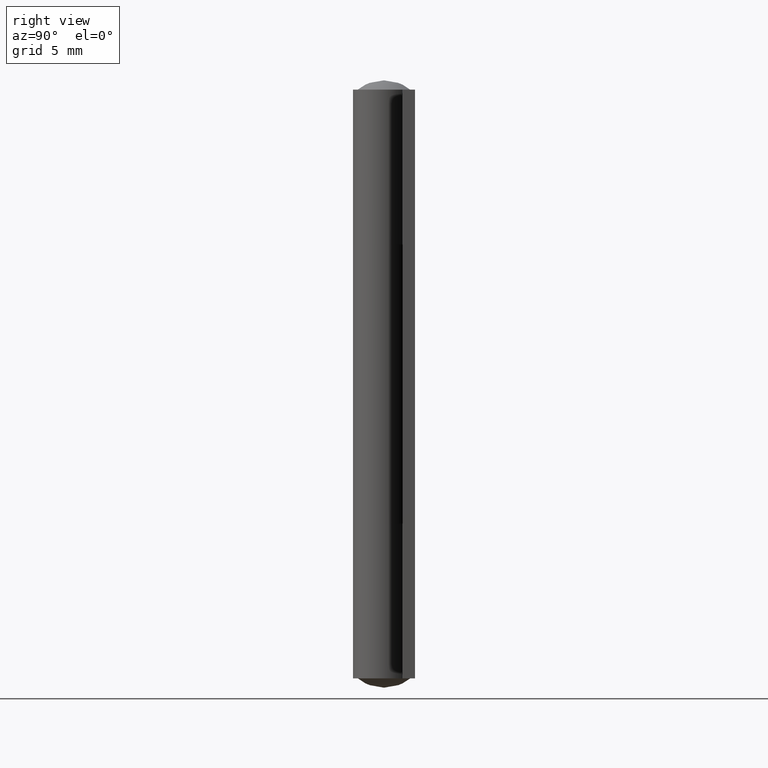
[diagram: clean part render]
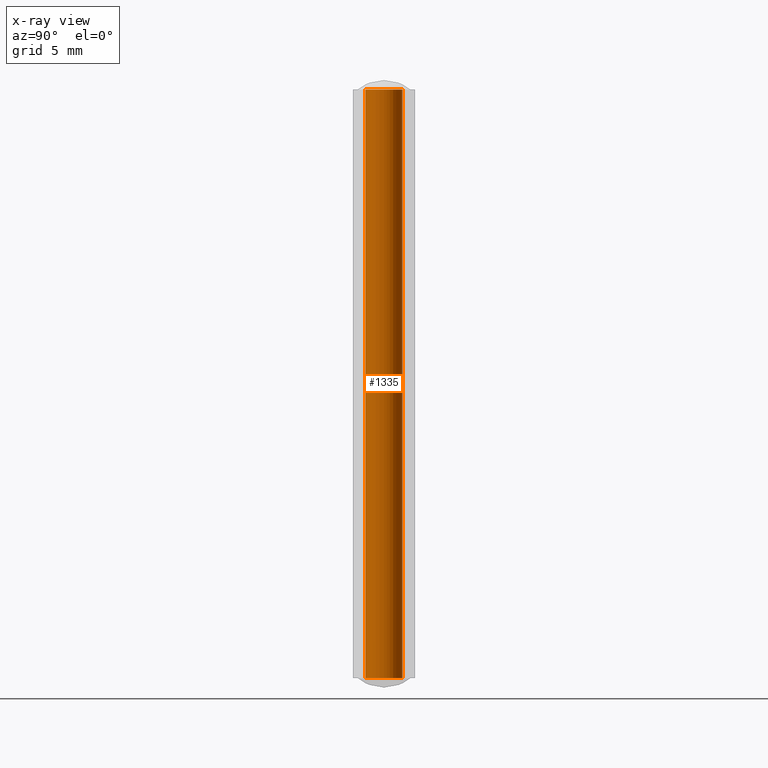
[diagram: x-ray — body ghosted, one internal face saturated and labeled with its STEP entity id]
A machine part, right view, then the same camera in x-ray: the body is ghosted and one INTERNAL B-rep face — a face not visible from any outside direction — is saturated and labeled: STEP entity #1335.
In plain terms, the highlighted face is a freeform B-spline surface patch.
Its self-contained STEP definition (entity closure, byte-faithful):
#1202=CARTESIAN_POINT('',(1.200000000000000,0.0,0.0));
#1203=VERTEX_POINT('',#1202);
#1204=CARTESIAN_POINT('',(0.073258247494476,-1.197761758103020,5.551115E-016));
#1205=VERTEX_POINT('',#1204);
#1206=CARTESIAN_POINT('',(1.200000000000000,0.0,0.0));
#1207=CARTESIAN_POINT('',(1.200000000000000,-1.128847280237123,0.0));
#1208=CARTESIAN_POINT('',(0.073258247494476,-1.197761758103021,0.0));
#1216=(BOUNDED_CURVE()B_SPLINE_CURVE(2,(#1206,#1207,#1208),.UNSPECIFIED.,.F.,.U.)B_SPLINE_CURVE_WITH_KNOTS((3,3),(0.500000000000000,0.739332962234384),.UNSPECIFIED.)CURVE()GEOMETRIC_REPRESENTATION_ITEM()RATIONAL_B_SPLINE_CURVE((1.0,0.719603993292051,0.976072041656947))REPRESENTATION_ITEM(''));
#1217=EDGE_CURVE('',#1203,#1205,#1216,.T.);
#1236=CARTESIAN_POINT('',(-0.073258247494475,1.197761758103020,5.551115E-016));
#1237=VERTEX_POINT('',#1236);
#1251=CARTESIAN_POINT('',(-0.073258247494475,1.197761758103021,0.0));
#1252=CARTESIAN_POINT('',(-0.036663315984704,1.200000000000000,0.0));
#1253=CARTESIAN_POINT('',(0.0,1.200000000000000,0.0));
#1254=CARTESIAN_POINT('',(1.200000000000000,1.200000000000000,0.0));
#1255=CARTESIAN_POINT('',(1.200000000000000,0.0,0.0));
#1263=(BOUNDED_CURVE()B_SPLINE_CURVE(2,(#1251,#1252,#1253,#1254,#1255),.UNSPECIFIED.,.F.,.U.)B_SPLINE_CURVE_WITH_KNOTS((3,2,3),(0.239332962234384,0.250000000000000,0.500000000000000),.UNSPECIFIED.)CURVE()GEOMETRIC_REPRESENTATION_ITEM()RATIONAL_B_SPLINE_CURVE((0.976072041656947,0.987502787894496,1.0,0.707106781186547,1.0))REPRESENTATION_ITEM(''));
#1264=EDGE_CURVE('',#1237,#1203,#1263,.T.);
#1269=CARTESIAN_POINT('',(-0.073258247441828,1.197761758106240,38.950000000000010));
#1270=CARTESIAN_POINT('',(1.124503510664412,1.271020005548068,38.950000000000003));
#1271=CARTESIAN_POINT('',(1.197761758106240,0.073258247441828,38.950000000000010));
#1272=CARTESIAN_POINT('',(1.271020005548068,-1.124503510664412,38.950000000000003));
#1273=CARTESIAN_POINT('',(0.073258247441828,-1.197761758106240,38.950000000000010));
#1274=CARTESIAN_POINT('',(-0.073258247441828,1.197761758106240,-0.973749999999995));
#1275=CARTESIAN_POINT('',(1.124503510664412,1.271020005548068,-0.973749999999995));
#1276=CARTESIAN_POINT('',(1.197761758106240,0.073258247441828,-0.973749999999995));
#1277=CARTESIAN_POINT('',(1.271020005548068,-1.124503510664412,-0.973749999999995));
#1278=CARTESIAN_POINT('',(0.073258247441828,-1.197761758106240,-0.973749999999995));
#1286=(BOUNDED_SURFACE()B_SPLINE_SURFACE(2,1,((#1269,#1274),(#1270,#1275),(#1271,#1276),(#1272,#1277),(#1273,#1278)),.UNSPECIFIED.,.F.,.F.,.U.)B_SPLINE_SURFACE_WITH_KNOTS((3,2,3),(2,2),(3.141592653589793,4.712388980384690,6.283185307179586),(0.0,39.923750000000013),.UNSPECIFIED.)GEOMETRIC_REPRESENTATION_ITEM()RATIONAL_B_SPLINE_SURFACE(((1.0,1.0),(0.707106781186548,0.707106781186548),(1.0,1.0),(0.707106781186548,0.707106781186548),(1.0,1.0)))REPRESENTATION_ITEM('')SURFACE());
#1287=ORIENTED_EDGE('',*,*,#1264,.F.);
#1288=CARTESIAN_POINT('',(-0.073258247494475,1.197761758103020,38.0));
#1289=VERTEX_POINT('',#1288);
#1290=CARTESIAN_POINT('',(-0.073258247494475,1.197761758103020,38.0));
#1291=CARTESIAN_POINT('',(-0.073258247494475,1.197761758103020,5.551115E-016));
#1292=QUASI_UNIFORM_CURVE('',1,(#1290,#1291),.UNSPECIFIED.,.F.,.U.);
#1293=EDGE_CURVE('',#1289,#1237,#1292,.T.);
#1294=ORIENTED_EDGE('',*,*,#1293,.F.);
#1295=CARTESIAN_POINT('',(1.200000000000000,0.0,38.0));
#1296=VERTEX_POINT('',#1295);
#1297=CARTESIAN_POINT('',(-0.073258247494475,1.197761758103021,38.000000000000007));
#1298=CARTESIAN_POINT('',(-0.036663315984704,1.200000000000000,37.999999999999993));
#1299=CARTESIAN_POINT('',(0.0,1.200000000000000,38.0));
#1300=CARTESIAN_POINT('',(1.200000000000000,1.200000000000000,37.999999999999993));
#1301=CARTESIAN_POINT('',(1.200000000000000,0.0,38.0));
#1309=(BOUNDED_CURVE()B_SPLINE_CURVE(2,(#1297,#1298,#1299,#1300,#1301),.UNSPECIFIED.,.F.,.U.)B_SPLINE_CURVE_WITH_KNOTS((3,2,3),(0.239332962234384,0.250000000000000,0.500000000000000),.UNSPECIFIED.)CURVE()GEOMETRIC_REPRESENTATION_ITEM()RATIONAL_B_SPLINE_CURVE((0.976072041656947,0.987502787894496,1.0,0.707106781186547,1.0))REPRESENTATION_ITEM(''));
#1310=EDGE_CURVE('',#1289,#1296,#1309,.T.);
#1311=ORIENTED_EDGE('',*,*,#1310,.T.);
#1312=CARTESIAN_POINT('',(0.073258247494475,-1.197761758103020,38.0));
#1313=VERTEX_POINT('',#1312);
#1314=CARTESIAN_POINT('',(1.200000000000000,0.0,38.0));
#1315=CARTESIAN_POINT('',(1.200000000000000,-1.128847280237123,37.999999999999993));
#1316=CARTESIAN_POINT('',(0.073258247494476,-1.197761758103021,38.000000000000007));
#1324=(BOUNDED_CURVE()B_SPLINE_CURVE(2,(#1314,#1315,#1316),.UNSPECIFIED.,.F.,.U.)B_SPLINE_CURVE_WITH_KNOTS((3,3),(0.500000000000000,0.739332962234384),.UNSPECIFIED.)CURVE()GEOMETRIC_REPRESENTATION_ITEM()RATIONAL_B_SPLINE_CURVE((1.0,0.719603993292051,0.976072041656947))REPRESENTATION_ITEM(''));
#1325=EDGE_CURVE('',#1296,#1313,#1324,.T.);
#1326=ORIENTED_EDGE('',*,*,#1325,.T.);
#1327=CARTESIAN_POINT('',(0.073258247494475,-1.197761758103020,38.0));
#1328=CARTESIAN_POINT('',(0.073258247494476,-1.197761758103020,5.551115E-016));
#1329=QUASI_UNIFORM_CURVE('',1,(#1327,#1328),.UNSPECIFIED.,.F.,.U.);
#1330=EDGE_CURVE('',#1313,#1205,#1329,.T.);
#1331=ORIENTED_EDGE('',*,*,#1330,.T.);
#1332=ORIENTED_EDGE('',*,*,#1217,.F.);
#1333=EDGE_LOOP('',(#1287,#1294,#1311,#1326,#1331,#1332));
#1334=FACE_OUTER_BOUND('',#1333,.T.);
#1335=ADVANCED_FACE('',(#1334),#1286,.T.);